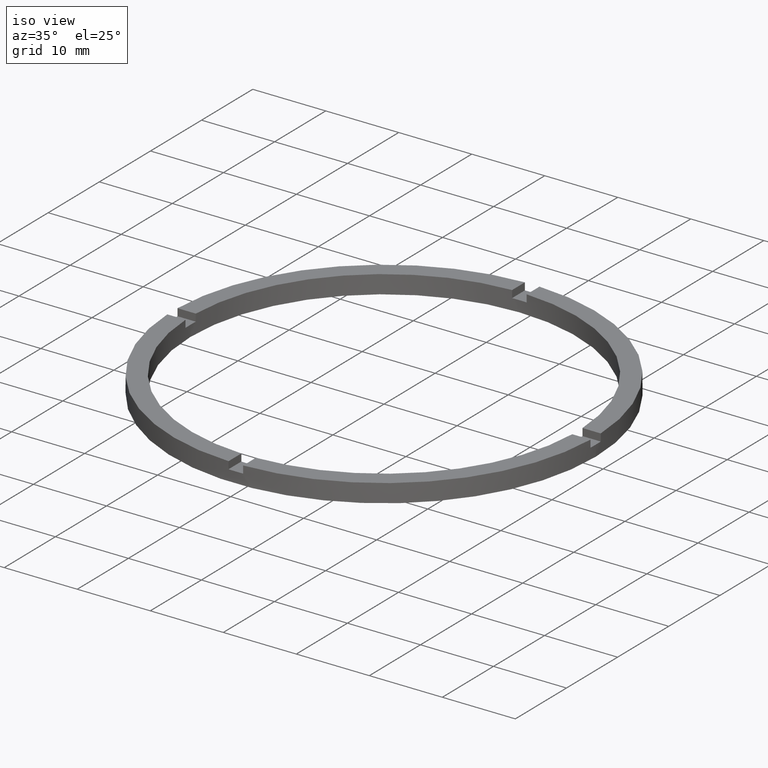
[diagram: clean part render]
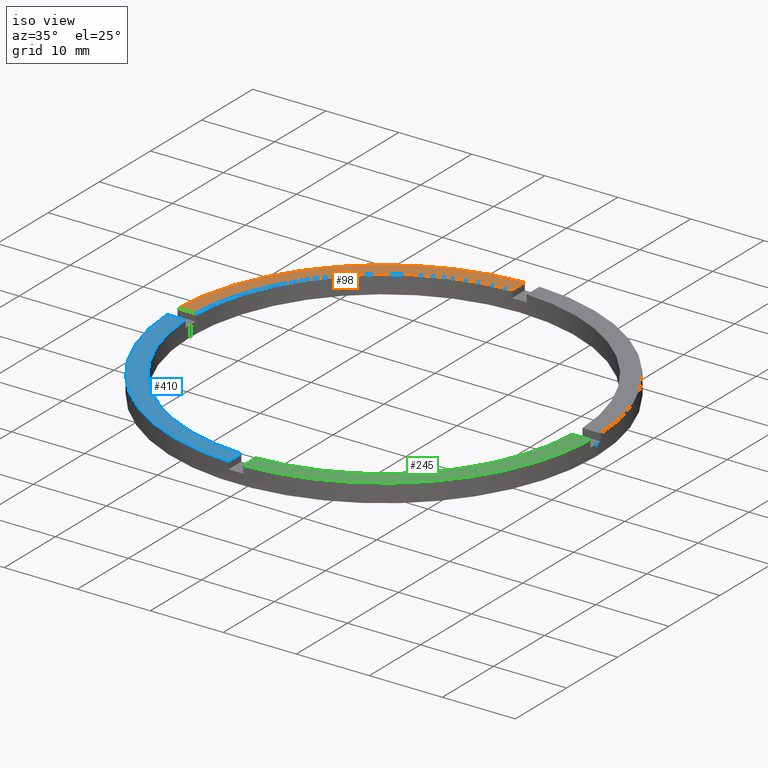
[diagram: same view with three faces highlighted in distinct colors, each labeled with its STEP entity id]
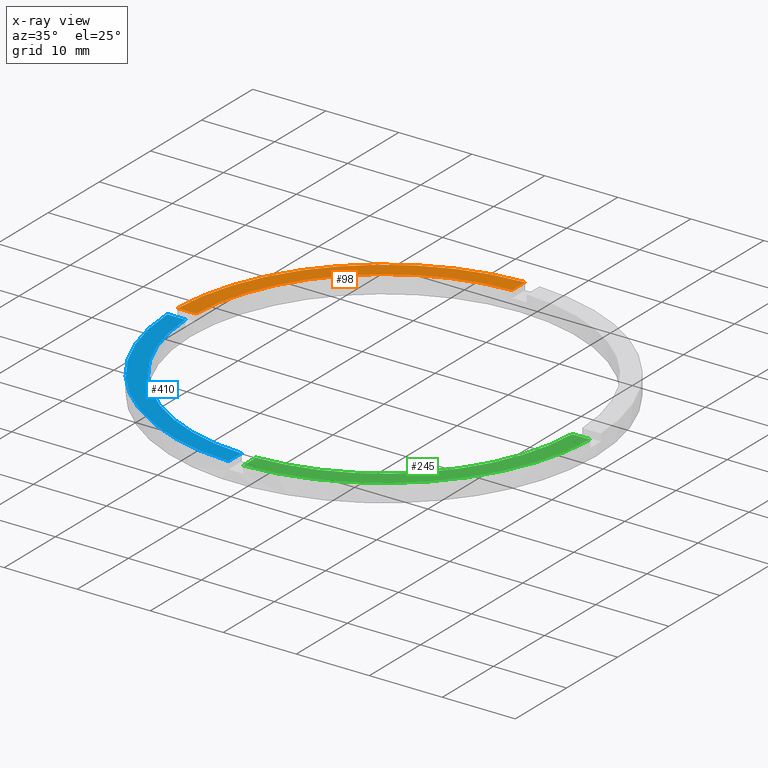
[diagram: x-ray of the same camera — body ghosted, the three highlighted faces saturated]
A machine part, iso view with three faces highlighted in distinct colors.
The next image is the same camera in x-ray (body ghosted, the three faces saturated) — at least one of them is partly hidden behind the body in this view.
Their STEP definitions:

[orange] entity #98 — the highlighted planar face has unit normal (0, 0, 1).
#33 = ORIENTED_EDGE ( 'NONE', *, *, #662, .F. ) ;
#65 = ORIENTED_EDGE ( 'NONE', *, *, #253, .F. ) ;
#81 = PLANE ( 'NONE',  #118 ) ;
#98 = ADVANCED_FACE ( 'NONE', ( #324 ), #81, .T. ) ;
#118 = AXIS2_PLACEMENT_3D ( 'NONE', #239, #388, #218 ) ;
#120 = LINE ( 'NONE', #336, #384 ) ;
#129 = EDGE_CURVE ( 'NONE', #563, #649, #599, .T. ) ;
#132 = CARTESIAN_POINT ( 'NONE',  ( -1.000000000000026645, 19.00000000000000355, 2.500000000000000000 ) ) ;
#135 = VERTEX_POINT ( 'NONE', #711 ) ;
#162 = LINE ( 'NONE', #132, #194 ) ;
#176 = AXIS2_PLACEMENT_3D ( 'NONE', #669, #284, #432 ) ;
#194 = VECTOR ( 'NONE', #729, 1000.000000000000000 ) ;
#211 = DIRECTION ( 'NONE',  ( 0.000000000000000000, 0.000000000000000000, 1.000000000000000000 ) ) ;
#218 = DIRECTION ( 'NONE',  ( 1.000000000000000000, 0.000000000000000000, -0.000000000000000000 ) ) ;
#239 = CARTESIAN_POINT ( 'NONE',  ( 0.000000000000000000, 0.000000000000000000, 2.500000000000000000 ) ) ;
#253 = EDGE_CURVE ( 'NONE', #135, #674, #358, .T. ) ;
#256 = CARTESIAN_POINT ( 'NONE',  ( -28.98275349237887966, 0.9999999999999726885, 2.500000000000000000 ) ) ;
#259 = CARTESIAN_POINT ( 'NONE',  ( 0.000000000000000000, 0.000000000000000000, 2.500000000000000000 ) ) ;
#268 = ORIENTED_EDGE ( 'NONE', *, *, #519, .F. ) ;
#284 = DIRECTION ( 'NONE',  ( 0.000000000000000000, 0.000000000000000000, 1.000000000000000000 ) ) ;
#324 = FACE_OUTER_BOUND ( 'NONE', #553, .T. ) ;
#336 = CARTESIAN_POINT ( 'NONE',  ( -19.00000000000018829, 0.9999999999999744649, 2.500000000000000000 ) ) ;
#358 = CIRCLE ( 'NONE', #176, 26.50000000000000355 ) ;
#384 = VECTOR ( 'NONE', #514, 1000.000000000000000 ) ;
#388 = DIRECTION ( 'NONE',  ( 0.000000000000000000, 0.000000000000000000, 1.000000000000000000 ) ) ;
#432 = DIRECTION ( 'NONE',  ( 1.000000000000000000, 0.000000000000000000, 0.000000000000000000 ) ) ;
#473 = DIRECTION ( 'NONE',  ( 1.000000000000000000, 0.000000000000000000, 0.000000000000000000 ) ) ;
#513 = ORIENTED_EDGE ( 'NONE', *, *, #129, .T. ) ;
#514 = DIRECTION ( 'NONE',  ( -1.000000000000000000, -1.734723475976807341E-16, 0.000000000000000000 ) ) ;
#519 = EDGE_CURVE ( 'NONE', #674, #649, #120, .T. ) ;
#553 = EDGE_LOOP ( 'NONE', ( #33, #513, #268, #65 ) ) ;
#563 = VERTEX_POINT ( 'NONE', #693 ) ;
#599 = CIRCLE ( 'NONE', #749, 29.00000000000000000 ) ;
#649 = VERTEX_POINT ( 'NONE', #256 ) ;
#662 = EDGE_CURVE ( 'NONE', #563, #135, #162, .T. ) ;
#669 = CARTESIAN_POINT ( 'NONE',  ( 0.000000000000000000, 0.000000000000000000, 2.500000000000000000 ) ) ;
#674 = VERTEX_POINT ( 'NONE', #736 ) ;
#693 = CARTESIAN_POINT ( 'NONE',  ( -1.000000000000026645, 28.98275349237887610, 2.500000000000000000 ) ) ;
#711 = CARTESIAN_POINT ( 'NONE',  ( -1.000000000000026645, 26.48112535373072163, 2.500000000000000000 ) ) ;
#729 = DIRECTION ( 'NONE',  ( -0.000000000000000000, -1.000000000000000000, -0.000000000000000000 ) ) ;
#736 = CARTESIAN_POINT ( 'NONE',  ( -26.48112535373072518, 0.9999999999999731326, 2.500000000000000000 ) ) ;
#749 = AXIS2_PLACEMENT_3D ( 'NONE', #259, #211, #473 ) ;

[blue] entity #410 — the highlighted planar face has unit normal (0, 0, 1).
#4 = AXIS2_PLACEMENT_3D ( 'NONE', #428, #183, #515 ) ;
#13 = ORIENTED_EDGE ( 'NONE', *, *, #500, .F. ) ;
#53 = ORIENTED_EDGE ( 'NONE', *, *, #280, .F. ) ;
#61 = VERTEX_POINT ( 'NONE', #136 ) ;
#127 = DIRECTION ( 'NONE',  ( 1.301042606982605567E-16, -1.000000000000000000, 0.000000000000000000 ) ) ;
#136 = CARTESIAN_POINT ( 'NONE',  ( -28.98275349237887610, -1.000000000000027311, 2.500000000000000000 ) ) ;
#168 = CARTESIAN_POINT ( 'NONE',  ( 0.000000000000000000, 0.000000000000000000, 2.500000000000000000 ) ) ;
#183 = DIRECTION ( 'NONE',  ( 0.000000000000000000, 0.000000000000000000, 1.000000000000000000 ) ) ;
#192 = DIRECTION ( 'NONE',  ( 1.000000000000000000, 0.000000000000000000, 0.000000000000000000 ) ) ;
#197 = VERTEX_POINT ( 'NONE', #628 ) ;
#199 = DIRECTION ( 'NONE',  ( 1.000000000000000000, 1.734723475976807341E-16, -0.000000000000000000 ) ) ;
#217 = CARTESIAN_POINT ( 'NONE',  ( -1.000000000000159650, -28.98275349237887255, 2.500000000000000000 ) ) ;
#227 = EDGE_CURVE ( 'NONE', #402, #293, #353, .T. ) ;
#236 = ORIENTED_EDGE ( 'NONE', *, *, #673, .T. ) ;
#280 = EDGE_CURVE ( 'NONE', #197, #402, #355, .T. ) ;
#293 = VERTEX_POINT ( 'NONE', #217 ) ;
#315 = CARTESIAN_POINT ( 'NONE',  ( 0.000000000000000000, 0.000000000000000000, 2.500000000000000000 ) ) ;
#325 = VECTOR ( 'NONE', #127, 1000.000000000000000 ) ;
#353 = LINE ( 'NONE', #731, #325 ) ;
#355 = CIRCLE ( 'NONE', #663, 26.50000000000000355 ) ;
#369 = LINE ( 'NONE', #506, #627 ) ;
#390 = PLANE ( 'NONE',  #4 ) ;
#391 = AXIS2_PLACEMENT_3D ( 'NONE', #168, #484, #435 ) ;
#402 = VERTEX_POINT ( 'NONE', #602 ) ;
#410 = ADVANCED_FACE ( 'NONE', ( #633 ), #390, .T. ) ;
#428 = CARTESIAN_POINT ( 'NONE',  ( 0.000000000000000000, 0.000000000000000000, 2.500000000000000000 ) ) ;
#435 = DIRECTION ( 'NONE',  ( 1.000000000000000000, 0.000000000000000000, 0.000000000000000000 ) ) ;
#462 = CIRCLE ( 'NONE', #391, 29.00000000000000000 ) ;
#484 = DIRECTION ( 'NONE',  ( 0.000000000000000000, 0.000000000000000000, 1.000000000000000000 ) ) ;
#500 = EDGE_CURVE ( 'NONE', #61, #197, #369, .T. ) ;
#506 = CARTESIAN_POINT ( 'NONE',  ( -19.00000000000018829, -1.000000000000025535, 2.500000000000000000 ) ) ;
#515 = DIRECTION ( 'NONE',  ( 1.000000000000000000, 0.000000000000000000, -0.000000000000000000 ) ) ;
#546 = ORIENTED_EDGE ( 'NONE', *, *, #227, .F. ) ;
#567 = EDGE_LOOP ( 'NONE', ( #546, #53, #13, #236 ) ) ;
#602 = CARTESIAN_POINT ( 'NONE',  ( -1.000000000000159872, -26.48112535373071807, 2.500000000000000000 ) ) ;
#627 = VECTOR ( 'NONE', #199, 1000.000000000000000 ) ;
#628 = CARTESIAN_POINT ( 'NONE',  ( -26.48112535373072163, -1.000000000000026867, 2.500000000000000000 ) ) ;
#633 = FACE_OUTER_BOUND ( 'NONE', #567, .T. ) ;
#663 = AXIS2_PLACEMENT_3D ( 'NONE', #315, #695, #192 ) ;
#673 = EDGE_CURVE ( 'NONE', #61, #293, #462, .T. ) ;
#695 = DIRECTION ( 'NONE',  ( 0.000000000000000000, 0.000000000000000000, 1.000000000000000000 ) ) ;
#731 = CARTESIAN_POINT ( 'NONE',  ( -1.000000000000160982, -19.00000000000018474, 2.500000000000000000 ) ) ;

[green] entity #245 — the highlighted planar face has unit normal (0, 0, 1).
#17 = DIRECTION ( 'NONE',  ( -1.301042606982605567E-16, 1.000000000000000000, -0.000000000000000000 ) ) ;
#49 = EDGE_LOOP ( 'NONE', ( #76, #87, #555, #294 ) ) ;
#57 = VERTEX_POINT ( 'NONE', #434 ) ;
#70 = EDGE_CURVE ( 'NONE', #150, #57, #86, .T. ) ;
#76 = ORIENTED_EDGE ( 'NONE', *, *, #70, .F. ) ;
#86 = LINE ( 'NONE', #684, #605 ) ;
#87 = ORIENTED_EDGE ( 'NONE', *, *, #234, .F. ) ;
#88 = CARTESIAN_POINT ( 'NONE',  ( 0.9999999999998404610, -28.98275349237888321, 2.500000000000000000 ) ) ;
#109 = CIRCLE ( 'NONE', #585, 29.00000000000000000 ) ;
#150 = VERTEX_POINT ( 'NONE', #459 ) ;
#166 = PLANE ( 'NONE',  #222 ) ;
#222 = AXIS2_PLACEMENT_3D ( 'NONE', #304, #386, #503 ) ;
#234 = EDGE_CURVE ( 'NONE', #592, #150, #601, .T. ) ;
#243 = CARTESIAN_POINT ( 'NONE',  ( 0.9999999999998402389, -26.48112535373072873, 2.500000000000000000 ) ) ;
#245 = ADVANCED_FACE ( 'NONE', ( #581 ), #166, .T. ) ;
#294 = ORIENTED_EDGE ( 'NONE', *, *, #418, .T. ) ;
#304 = CARTESIAN_POINT ( 'NONE',  ( 0.000000000000000000, 0.000000000000000000, 2.500000000000000000 ) ) ;
#313 = CARTESIAN_POINT ( 'NONE',  ( 0.9999999999998391287, -19.00000000000018474, 2.500000000000000000 ) ) ;
#322 = CARTESIAN_POINT ( 'NONE',  ( 0.000000000000000000, 0.000000000000000000, 2.500000000000000000 ) ) ;
#328 = DIRECTION ( 'NONE',  ( 1.000000000000000000, 0.000000000000000000, 0.000000000000000000 ) ) ;
#360 = VECTOR ( 'NONE', #17, 1000.000000000000000 ) ;
#386 = DIRECTION ( 'NONE',  ( 0.000000000000000000, 0.000000000000000000, 1.000000000000000000 ) ) ;
#403 = DIRECTION ( 'NONE',  ( 0.000000000000000000, 0.000000000000000000, 1.000000000000000000 ) ) ;
#418 = EDGE_CURVE ( 'NONE', #538, #57, #109, .T. ) ;
#430 = EDGE_CURVE ( 'NONE', #538, #592, #634, .T. ) ;
#434 = CARTESIAN_POINT ( 'NONE',  ( 28.98275349237887255, -1.000000000000156763, 2.500000000000000000 ) ) ;
#439 = DIRECTION ( 'NONE',  ( 0.000000000000000000, 0.000000000000000000, 1.000000000000000000 ) ) ;
#459 = CARTESIAN_POINT ( 'NONE',  ( 26.48112535373071807, -1.000000000000156986, 2.500000000000000000 ) ) ;
#503 = DIRECTION ( 'NONE',  ( 1.000000000000000000, 0.000000000000000000, -0.000000000000000000 ) ) ;
#538 = VERTEX_POINT ( 'NONE', #88 ) ;
#555 = ORIENTED_EDGE ( 'NONE', *, *, #430, .F. ) ;
#581 = FACE_OUTER_BOUND ( 'NONE', #49, .T. ) ;
#585 = AXIS2_PLACEMENT_3D ( 'NONE', #322, #403, #328 ) ;
#592 = VERTEX_POINT ( 'NONE', #243 ) ;
#601 = CIRCLE ( 'NONE', #640, 26.50000000000000355 ) ;
#605 = VECTOR ( 'NONE', #724, 1000.000000000000000 ) ;
#620 = CARTESIAN_POINT ( 'NONE',  ( 0.000000000000000000, 0.000000000000000000, 2.500000000000000000 ) ) ;
#634 = LINE ( 'NONE', #313, #360 ) ;
#640 = AXIS2_PLACEMENT_3D ( 'NONE', #620, #439, #681 ) ;
#681 = DIRECTION ( 'NONE',  ( 1.000000000000000000, 0.000000000000000000, 0.000000000000000000 ) ) ;
#684 = CARTESIAN_POINT ( 'NONE',  ( 19.00000000000000000, -1.000000000000157208, 2.500000000000000000 ) ) ;
#724 = DIRECTION ( 'NONE',  ( 1.000000000000000000, 4.336808689942018352E-17, 0.000000000000000000 ) ) ;